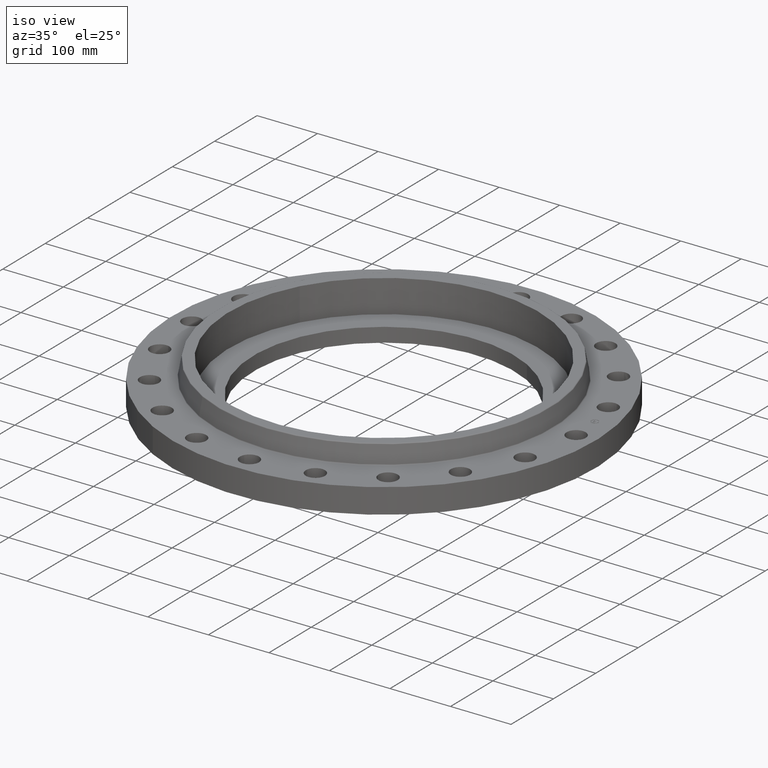
[diagram: clean part render]
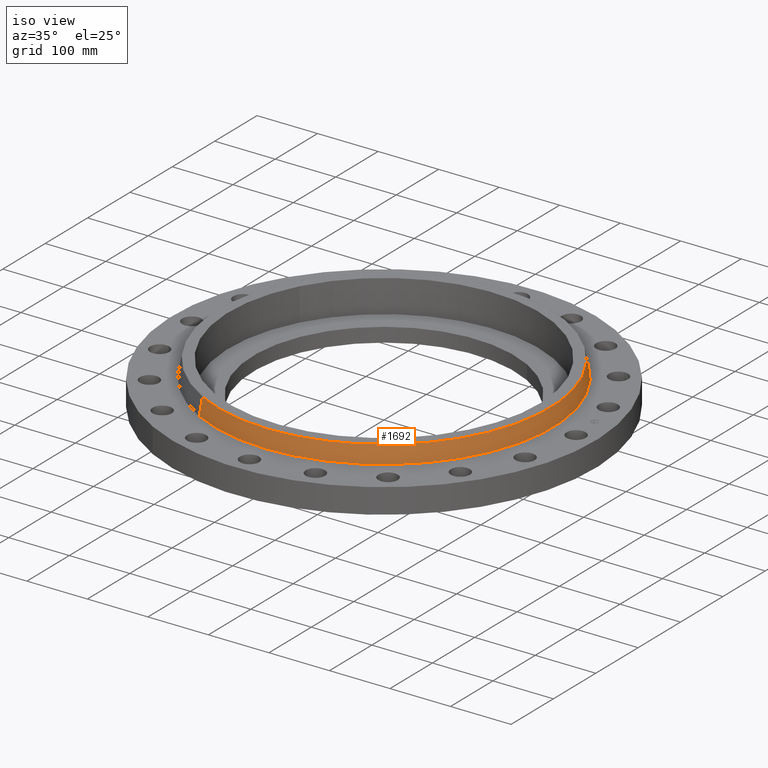
[diagram: same view with one face highlighted and labeled with its STEP entity id]
A machine part, iso view. The second image highlights one B-rep face of the part: STEP entity #1692.
In plain terms, the highlighted conical surface has half-angle 10 deg.
Its self-contained STEP definition (entity closure, byte-faithful):
#1585=AXIS2_PLACEMENT_3D('Circle Axis2P3D',#1583,#1584,$) ;
#1665=AXIS2_PLACEMENT_3D('Cone Axis2P3D',#1662,#1663,#1664) ;
#1676=AXIS2_PLACEMENT_3D('Circle Axis2P3D',#1674,#1675,$) ;
#1580=CARTESIAN_POINT('Vertex',(5.26948955298,9.64573592642,1.66958110935)) ;
#1583=CARTESIAN_POINT('Axis2P3D Location',(0.,0.,1.66958110935)) ;
#1587=CARTESIAN_POINT('Vertex',(-5.26948955298,-9.64573592642,1.66958110935)) ;
#1662=CARTESIAN_POINT('Axis2P3D Location',(0.,0.,2.76041889067)) ;
#1667=CARTESIAN_POINT('Line Origine',(5.22338220834,9.56133699817,2.21500000001)) ;
#1671=CARTESIAN_POINT('Vertex',(5.1772748637,9.47693806992,2.76041889067)) ;
#1674=CARTESIAN_POINT('Axis2P3D Location',(0.,0.,2.76041889067)) ;
#1678=CARTESIAN_POINT('Vertex',(-5.1772748637,-9.47693806992,2.76041889067)) ;
#1681=CARTESIAN_POINT('Line Origine',(-5.22338220834,-9.56133699817,2.21500000001)) ;
#1584=DIRECTION('Axis2P3D Direction',(0.,0.,-0.0393700787402)) ;
#1663=DIRECTION('Axis2P3D Direction',(0.,0.,-0.0393700787402)) ;
#1664=DIRECTION('Axis2P3D XDirection',(-0.0188750212049,-0.0345504945626,0.)) ;
#1668=DIRECTION('Vector Direction',(0.00327761303565,0.00599963041829,-0.03877195878)) ;
#1675=DIRECTION('Axis2P3D Direction',(0.,0.,-0.0393700787402)) ;
#1682=DIRECTION('Vector Direction',(-0.00327761303565,-0.00599963041829,-0.03877195878)) ;
#1669=VECTOR('Line Direction',#1668,0.0393700787402) ;
#1683=VECTOR('Line Direction',#1682,0.0393700787402) ;
#1687=ORIENTED_EDGE('',*,*,#1589,.F.) ;
#1688=ORIENTED_EDGE('',*,*,#1673,.T.) ;
#1689=ORIENTED_EDGE('',*,*,#1680,.T.) ;
#1690=ORIENTED_EDGE('',*,*,#1685,.F.) ;
#1692=ADVANCED_FACE('PartBody',(#1691),#1666,.T.) ;
#1586=CIRCLE('generated circle',#1585,10.9912575127) ;
#1677=CIRCLE('generated circle',#1676,10.7989133803) ;
#1666=CONICAL_SURFACE('Cone',#1665,10.7989133803,0.174532925199) ;
#1589=EDGE_CURVE('',#1581,#1588,#1586,.T.) ;
#1673=EDGE_CURVE('',#1581,#1672,#1670,.F.) ;
#1680=EDGE_CURVE('',#1672,#1679,#1677,.T.) ;
#1685=EDGE_CURVE('',#1588,#1679,#1684,.F.) ;
#1686=EDGE_LOOP('',(#1687,#1688,#1689,#1690)) ;
#1691=FACE_OUTER_BOUND('',#1686,.T.) ;
#1670=LINE('Line',#1667,#1669) ;
#1684=LINE('Line',#1681,#1683) ;
#1581=VERTEX_POINT('',#1580) ;
#1588=VERTEX_POINT('',#1587) ;
#1672=VERTEX_POINT('',#1671) ;
#1679=VERTEX_POINT('',#1678) ;